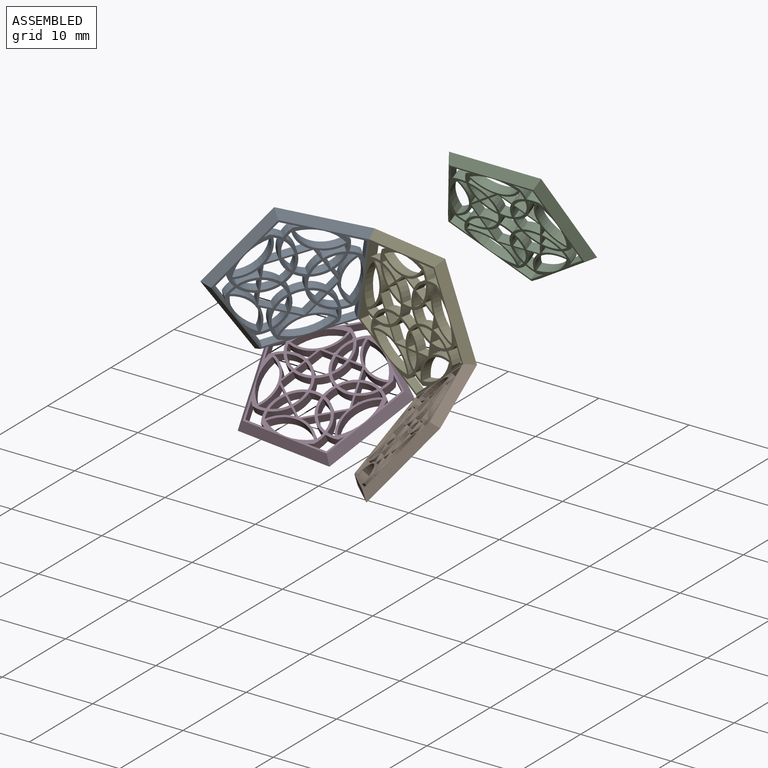
[diagram: assembled view]
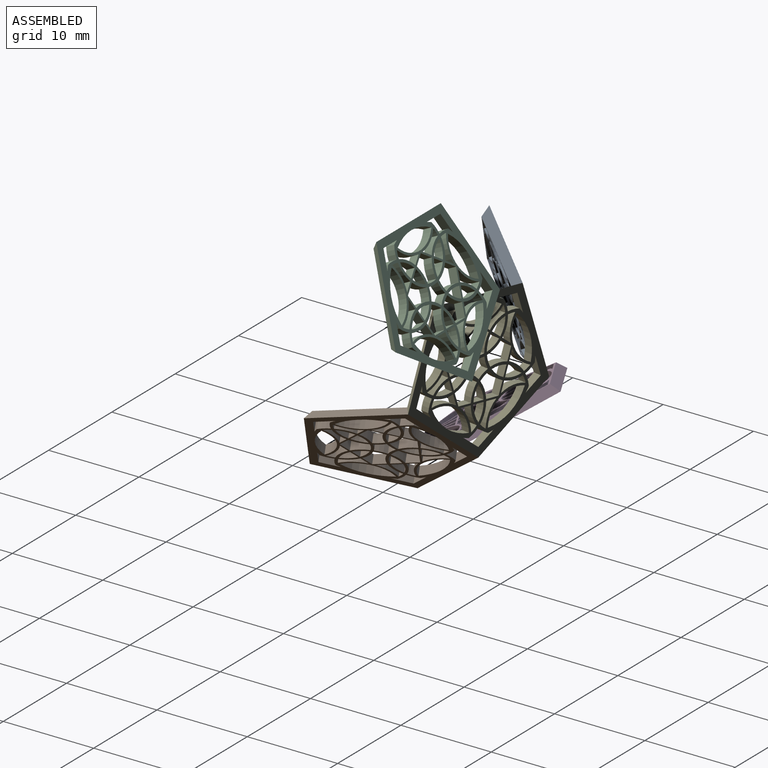
[diagram: assembled view, second angle]
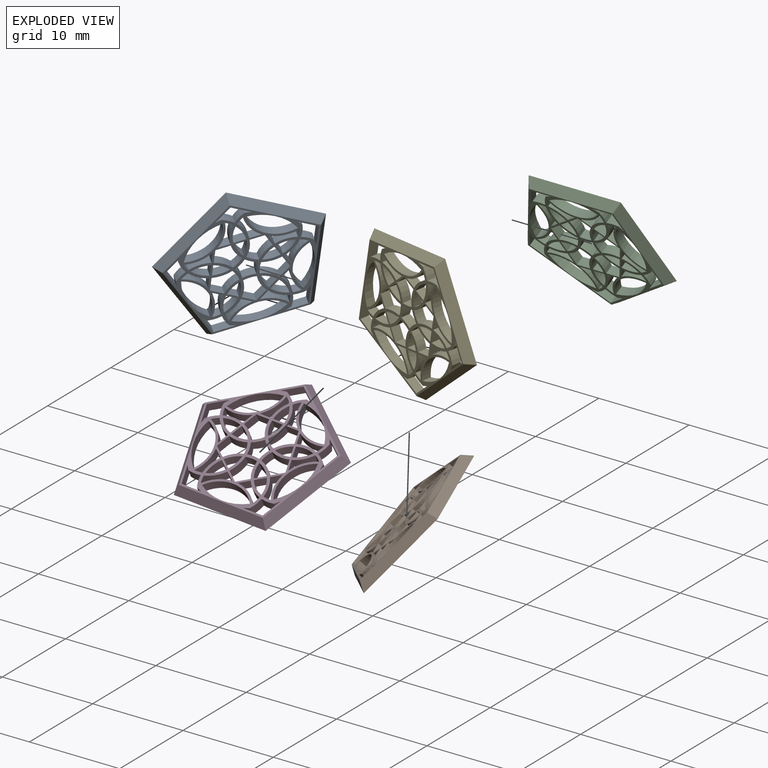
[diagram: exploded view]
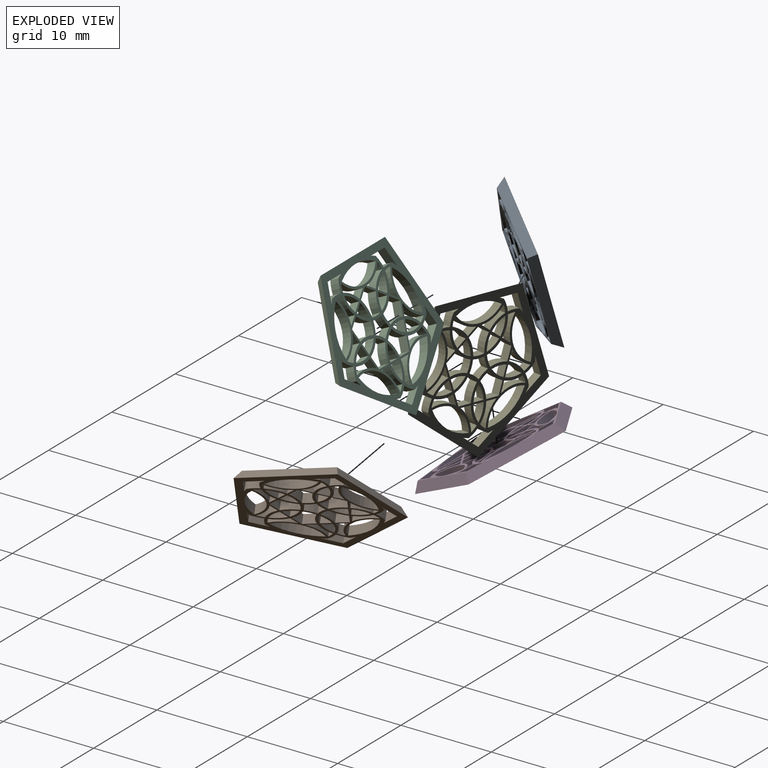
[diagram: exploded view, second angle]
ASSEMBLY  parts=5 mates=3
PART A: 147 faces, bbox 16.5x15.7x1 mm
  f0: cylinder r=7.15mm len=1mm, axis (0,0,-1), area 0.6mm2, adj f127,f130,f131,f134
  f1: cylinder r=7.15mm len=1mm, axis (0,0,-1), area 0.6mm2, adj f85,f130,f131,f132
  f2: cylinder r=7.15mm len=1mm, axis (0,0,-1), area 0.6mm2, adj f88,f130,f131,f140
  f3: cylinder r=7.15mm len=1mm, axis (0,0,-1), area 0.6mm2, adj f91,f130,f131,f138
  f4: cylinder r=7.15mm len=1mm, axis (0,0,-1), area 0.6mm2, adj f94,f130,f131,f136
  f5: cylinder r=3.1mm len=1mm, axis (0,0,-1), area 0.9mm2, adj f6,f129,f130,f131
  f6: cylinder r=3.66mm len=2.11mm, axis (0,0,-1), area 3mm2, adj f5,f7,f130,f131
  f7: plane 1.13x1mm, normal (0.95,0.31,0), area 1.2mm2, adj f6,f129,f130,f131
  f8: plane 1.38x1mm, normal (0.95,-0.31,0), area 1.5mm2, adj f9,f98,f130,f131
  f9: plane 1.45x1mm, normal (0,-1,0), area 1.5mm2, adj f8,f10,f130,f131
  f10: cylinder r=3.4mm len=1.87mm, axis (0,0,-1), area 2mm2, adj f9,f11,f130,f131
  f11: cylinder r=3.1mm len=1.04mm, axis (0,0,-1), area 1.3mm2, adj f10,f98,f130,f131
  f12: plane 1.45x1mm, normal (0,-1,0), area 1.5mm2, adj f13,f99,f130,f131
  f13: plane 1.38x1mm, normal (-0.95,-0.31,0), area 1.5mm2, adj f12,f14,f130,f131
  f14: cylinder r=3.4mm len=1.56mm, axis (0,0,-1), area 2mm2, adj f13,f15,f130,f131
  f15: cylinder r=3.1mm len=1.04mm, axis (0,0,-1), area 1.3mm2, adj f14,f99,f130,f131
  f16: plane 1.38x1mm, normal (-0.95,-0.31,0), area 1.5mm2, adj f17,f100,f130,f131
  f17: plane 1.18x1mm, normal (-0.59,0.81,0), area 1.5mm2, adj f16,f18,f130,f131
  f18: cylinder r=3.4mm len=1.67mm, axis (0,0,-1), area 2mm2, adj f17,f19,f130,f131
  f19: cylinder r=3.1mm len=1.22mm, axis (0,0,-1), area 1.3mm2, adj f18,f100,f130,f131
  f20: plane 1.18x1mm, normal (0.59,0.81,0), area 1.5mm2, adj f21,f101,f130,f131
  f21: plane 1.38x1mm, normal (0.95,-0.31,0), area 1.5mm2, adj f20,f22,f130,f131
  f22: cylinder r=3.4mm len=2mm, axis (0,0,-1), area 2mm2, adj f21,f23,f130,f131
  f23: cylinder r=3.1mm len=1.22mm, axis (0,0,-1), area 1.3mm2, adj f22,f101,f130,f131
  f24: cylinder r=3.4mm len=1.27mm, axis (0,0,-1), area 1.3mm2, adj f25,f102,f130,f131
  f25: cylinder r=3.4mm len=1.08mm, axis (0,0,-1), area 1.3mm2, adj f24,f26,f130,f131
  f26: cylinder r=3.4mm len=1.08mm, axis (0,0,-1), area 1.3mm2, adj f25,f27,f130,f131
  f27: cylinder r=3.4mm len=1.27mm, axis (0,0,-1), area 1.3mm2, adj f26,f102,f130,f131
  f28: cylinder r=3.1mm len=1.67mm, axis (0,0,-1), area 1.8mm2, adj f29,f103,f130,f131
  f29: cylinder r=3.1mm len=1.44mm, axis (0,0,-1), area 1.8mm2, adj f28,f103,f130,f131
  f30: plane 1.13x1mm, normal (-0.95,0.31,0), area 1.2mm2, adj f31,f104,f130,f131
  f31: cylinder r=3.66mm len=2.11mm, axis (0,0,-1), area 3mm2, adj f30,f32,f130,f131
  f32: cylinder r=3.1mm len=1mm, axis (0,0,-1), area 0.9mm2, adj f31,f104,f130,f131
  f33: plane 1.15x1mm, normal (-0.95,0.31,0), area 1.2mm2, adj f34,f105,f130,f131
  f34: cylinder r=3.1mm len=1.56mm, axis (0,0,-1), area 2mm2, adj f33,f105,f130,f131
  f35: cylinder r=3.1mm len=1.56mm, axis (0,0,-1), area 2mm2, adj f36,f106,f130,f131
  f36: plane 1.15x1mm, normal (0.95,0.31,0), area 1.2mm2, adj f35,f106,f130,f131
  f37: plane 1.13x1mm, normal (0.95,0.31,0), area 1.2mm2, adj f38,f107,f130,f131
  f38: cylinder r=3.66mm len=2.88mm, axis (0,0,-1), area 3mm2, adj f37,f39,f130,f131
  f39: cylinder r=3.1mm len=1mm, axis (0,0,-1), area 0.9mm2, adj f38,f107,f130,f131
  f40: cylinder r=3.1mm len=1.67mm, axis (0,0,-1), area 1.8mm2, adj f41,f108,f130,f131
  f41: plane 1x0.96mm, normal (0.59,0.81,0), area 1.2mm2, adj f40,f108,f130,f131
  f42: cylinder r=3.1mm len=1.37mm, axis (0,0,-1), area 1.8mm2, adj f43,f109,f130,f131
  f43: plane 1.13x1mm, normal (-0.95,-0.31,0), area 1.2mm2, adj f42,f109,f130,f131
  f44: cylinder r=3.1mm len=1.63mm, axis (0,0,-1), area 1.8mm2, adj f45,f110,f130,f131
  f45: plane 1.19x1mm, normal (0,-1,0), area 1.2mm2, adj f44,f110,f130,f131
  f46: cylinder r=3.1mm len=1.74mm, axis (0,0,-1), area 1.8mm2, adj f47,f111,f130,f131
  f47: plane 1.13x1mm, normal (0.95,-0.31,0), area 1.2mm2, adj f46,f111,f130,f131
  f48: cylinder r=3.1mm len=1mm, axis (0,0,-1), area 0.9mm2, adj f49,f112,f130,f131
  f49: cylinder r=3.66mm len=2.88mm, axis (0,0,-1), area 3mm2, adj f48,f50,f130,f131
  f50: plane 1.13x1mm, normal (-0.95,0.31,0), area 1.2mm2, adj f49,f112,f130,f131
  f51: cylinder r=3.1mm len=1.84mm, axis (0,0,-1), area 2mm2, adj f52,f113,f130,f131
  f52: plane 1.21x1mm, normal (0,1,0), area 1.2mm2, adj f51,f113,f130,f131
  f53: plane 1.19x1mm, normal (0,1,0), area 1.2mm2, adj f54,f114,f130,f131
  f54: cylinder r=3.66mm len=2.62mm, axis (0,0,-1), area 3mm2, adj f53,f55,f130,f131
  f55: cylinder r=3.1mm len=1mm, axis (0,0,-1), area 0.9mm2, adj f54,f114,f130,f131
  f56: plane 1.19x1mm, normal (0,1,0), area 1.2mm2, adj f57,f115,f130,f131
  f57: cylinder r=3.4mm len=2.08mm, axis (0,0,-1), area 2.2mm2, adj f56,f58,f130,f131
  f58: cylinder r=3.1mm len=1mm, axis (0,0,-1), area 0.9mm2, adj f57,f115,f130,f131
  f59: cylinder r=3.4mm len=4.31mm, axis (0,0,-1), area 6.1mm2, adj f116,f130,f131
  f60: cylinder r=3.1mm len=1.29mm, axis (0,0,-1), area 1.3mm2, adj f61,f117,f130,f131
  f61: cylinder r=3.4mm len=1.93mm, axis (0,0,-1), area 2mm2, adj f60,f62,f130,f131
  f62: plane 1.18x1mm, normal (-0.59,0.81,0), area 1.5mm2, adj f61,f63,f130,f131
  f63: plane 1.18x1mm, normal (0.59,0.81,0), area 1.5mm2, adj f62,f117,f130,f131
  f64: cylinder r=3.4mm len=5.07mm, axis (0,0,-1), area 6.1mm2, adj f118,f130,f131
  f65: cylinder r=3.4mm len=1.79mm, axis (0,0,-1), area 2.2mm2, adj f66,f119,f130,f131
  f66: cylinder r=3.1mm len=1mm, axis (0,0,-1), area 0.9mm2, adj f65,f67,f130,f131
  f67: cylinder r=3.66mm len=2.55mm, axis (0,0,-1), area 3mm2, adj f66,f119,f130,f131
  f68: cylinder r=3.1mm len=1mm, axis (0,0,-1), area 0.9mm2, adj f69,f120,f130,f131
  f69: cylinder r=3.4mm len=2.1mm, axis (0,0,-1), area 2.2mm2, adj f68,f70,f130,f131
  f70: plane 1x0.96mm, normal (0.59,-0.81,0), area 1.2mm2, adj f69,f120,f130,f131
  f71: cylinder r=3.1mm len=1.84mm, axis (0,0,-1), area 2mm2, adj f72,f121,f130,f131
  f72: cylinder r=3.1mm len=1.57mm, axis (0,0,-1), area 2mm2, adj f71,f121,f130,f131
  f73: cylinder r=3.4mm len=5.33mm, axis (0,0,-1), area 6.1mm2, adj f122,f130,f131
  f74: cylinder r=3.4mm len=2.1mm, axis (0,0,-1), area 2.2mm2, adj f75,f123,f130,f131
  f75: cylinder r=3.1mm len=1mm, axis (0,0,-1), area 0.9mm2, adj f74,f76,f130,f131
  f76: cylinder r=3.66mm len=2.86mm, axis (0,0,-1), area 3mm2, adj f75,f123,f130,f131
  f77: cylinder r=3.1mm len=1mm, axis (0,0,-1), area 0.9mm2, adj f78,f124,f130,f131
  f78: cylinder r=3.4mm len=1.79mm, axis (0,0,-1), area 2.2mm2, adj f77,f79,f130,f131
  f79: plane 1x0.96mm, normal (-0.59,-0.81,0), area 1.2mm2, adj f78,f124,f130,f131
  f80: cylinder r=3.1mm len=1.57mm, axis (0,0,-1), area 2mm2, adj f81,f125,f130,f131
  f81: cylinder r=3.1mm len=1.84mm, axis (0,0,-1), area 2mm2, adj f80,f125,f130,f131
  f82: cylinder r=3.4mm len=5.07mm, axis (0,0,-1), area 6.1mm2, adj f126,f130,f131
  f83: cylinder r=7.15mm len=1mm, axis (0,0,-1), area 0.6mm2, adj f84,f130,f131,f133
  f84: cylinder r=3.4mm len=1.37mm, axis (0,0,-1), area 1.4mm2, adj f83,f85,f130,f131
  f85: cylinder r=3.4mm len=1.3mm, axis (0,0,-1), area 1.4mm2, adj f1,f84,f130,f131
  f86: cylinder r=7.15mm len=1mm, axis (0,0,-1), area 0.6mm2, adj f87,f130,f131,f141
  f87: cylinder r=3.4mm len=1.3mm, axis (0,0,-1), area 1.4mm2, adj f86,f88,f130,f131
  f88: cylinder r=3.4mm len=1.37mm, axis (0,0,-1), area 1.4mm2, adj f2,f87,f130,f131
  f89: cylinder r=7.15mm len=1mm, axis (0,0,-1), area 0.6mm2, adj f90,f130,f131,f139
  f90: cylinder r=3.4mm len=1.11mm, axis (0,0,-1), area 1.4mm2, adj f89,f91,f130,f131
  f91: cylinder r=3.4mm len=1.31mm, axis (0,0,-1), area 1.4mm2, adj f3,f90,f130,f131
  f92: cylinder r=7.15mm len=1mm, axis (0,0,-1), area 0.6mm2, adj f93,f130,f131,f137
  f93: cylinder r=3.4mm len=1.12mm, axis (0,0,-1), area 1.4mm2, adj f92,f94,f130,f131
  f94: cylinder r=3.4mm len=1.12mm, axis (0,0,-1), area 1.4mm2, adj f4,f93,f130,f131
  f95: cylinder r=7.15mm len=1mm, axis (0,0,-1), area 0.6mm2, adj f96,f130,f131,f135
  f96: cylinder r=3.4mm len=1.31mm, axis (0,0,-1), area 1.4mm2, adj f95,f127,f130,f131
  f97: cylinder r=5.13mm len=4.31mm, axis (0,0,-1), area 5.6mm2, adj f128,f130,f131
  f98: cylinder r=3.4mm len=1.56mm, axis (0,0,-1), area 2mm2, adj f8,f11,f130,f131
  f99: cylinder r=3.4mm len=1.87mm, axis (0,0,-1), area 2mm2, adj f12,f15,f130,f131
  f100: cylinder r=3.4mm len=2mm, axis (0,0,-1), area 2mm2, adj f16,f19,f130,f131
  f101: cylinder r=3.4mm len=1.67mm, axis (0,0,-1), area 2mm2, adj f20,f23,f130,f131
  f102: cylinder r=3.4mm len=1.33mm, axis (0,0,-1), area 1.3mm2, adj f24,f27,f130,f131
  f103: plane 1x0.96mm, normal (-0.59,0.81,0), area 1.2mm2, adj f28,f29,f130,f131
  f104: cylinder r=3.4mm len=1.76mm, axis (0,0,-1), area 2.2mm2, adj f30,f32,f130,f131
  f105: cylinder r=3.1mm len=1.93mm, axis (0,0,-1), area 2mm2, adj f33,f34,f130,f131
  f106: cylinder r=3.1mm len=1.93mm, axis (0,0,-1), area 2mm2, adj f35,f36,f130,f131
  f107: cylinder r=3.4mm len=2.19mm, axis (0,0,-1), area 2.2mm2, adj f37,f39,f130,f131
  f108: cylinder r=3.1mm len=1.44mm, axis (0,0,-1), area 1.8mm2, adj f40,f41,f130,f131
  f109: cylinder r=3.1mm len=1.74mm, axis (0,0,-1), area 1.8mm2, adj f42,f43,f130,f131
  f110: cylinder r=3.1mm len=1.63mm, axis (0,0,-1), area 1.8mm2, adj f44,f45,f130,f131
  f111: cylinder r=3.1mm len=1.37mm, axis (0,0,-1), area 1.8mm2, adj f46,f47,f130,f131
  f112: cylinder r=3.4mm len=2.19mm, axis (0,0,-1), area 2.2mm2, adj f48,f50,f130,f131
  f113: cylinder r=3.1mm len=1.84mm, axis (0,0,-1), area 2mm2, adj f51,f52,f130,f131
  f114: cylinder r=3.4mm len=2.08mm, axis (0,0,-1), area 2.2mm2, adj f53,f55,f130,f131
  f115: cylinder r=3.66mm len=2.62mm, axis (0,0,-1), area 3mm2, adj f56,f58,f130,f131
  f116: cylinder r=5.13mm len=4.31mm, axis (0,0,-1), area 5.6mm2, adj f59,f130,f131
  f117: cylinder r=3.4mm len=1.93mm, axis (0,0,-1), area 2mm2, adj f60,f63,f130,f131
  f118: cylinder r=5.13mm len=5.07mm, axis (0,0,-1), area 5.6mm2, adj f64,f130,f131
  f119: plane 1x0.96mm, normal (0.59,-0.81,0), area 1.2mm2, adj f65,f67,f130,f131
  f120: cylinder r=3.66mm len=2.86mm, axis (0,0,-1), area 3mm2, adj f68,f70,f130,f131
  f121: plane 1x0.98mm, normal (0.59,-0.81,0), area 1.2mm2, adj f71,f72,f130,f131
  f122: cylinder r=5.13mm len=5.33mm, axis (0,0,-1), area 5.6mm2, adj f73,f130,f131
  f123: plane 1x0.96mm, normal (-0.59,-0.81,0), area 1.2mm2, adj f74,f76,f130,f131
  f124: cylinder r=3.66mm len=2.55mm, axis (0,0,-1), area 3mm2, adj f77,f79,f130,f131
  f125: plane 1x0.98mm, normal (-0.59,-0.81,0), area 1.2mm2, adj f80,f81,f130,f131
  f126: cylinder r=5.13mm len=5.07mm, axis (0,0,-1), area 5.6mm2, adj f82,f130,f131
  f127: cylinder r=3.4mm len=1.11mm, axis (0,0,-1), area 1.4mm2, adj f0,f96,f130,f131
  f128: cylinder r=3.4mm len=4.31mm, axis (0,0,-1), area 6.1mm2, adj f97,f130,f131
  f129: cylinder r=3.4mm len=1.76mm, axis (0,0,-1), area 2.2mm2, adj f5,f7,f130,f131
  f130: plane 15.05x14.32mm, normal (0,0,1), area 45.6mm2, adj f0,f1,f2,f3,f4,f5,f6,f7
  f131: plane 16.5x15.7mm, normal (0,0,-1), area 75.7mm2, adj f0,f1,f2,f3,f4,f5,f6,f7
  f132: plane 2.15x1mm, normal (0,1,0), area 2.2mm2, adj f1,f130,f131,f133
  f133: plane 2.05x1mm, normal (0.95,0.31,0), area 2.2mm2, adj f83,f130,f131,f132
  f134: plane 2.05x1mm, normal (0.95,0.31,0), area 2.2mm2, adj f0,f130,f131,f135
  f135: plane 1.74x1.27mm, normal (0.59,-0.81,0), area 2.2mm2, adj f95,f130,f131,f134
  f136: plane 1.74x1.27mm, normal (0.59,-0.81,0), area 2.2mm2, adj f4,f130,f131,f137
  f137: plane 1.74x1.27mm, normal (-0.59,-0.81,0), area 2.2mm2, adj f92,f130,f131,f136
  f138: plane 1.74x1.27mm, normal (-0.59,-0.81,0), area 2.2mm2, adj f3,f130,f131,f139
  f139: plane 2.05x1mm, normal (-0.95,0.31,0), area 2.2mm2, adj f89,f130,f131,f138
  f140: plane 2.05x1mm, normal (-0.95,0.31,0), area 2.2mm2, adj f2,f130,f131,f141
  f141: plane 2.15x1mm, normal (0,1,0), area 2.2mm2, adj f86,f130,f131,f140
  f142: plane 9.7x3.6mm, normal (-0.81,-0.26,0.53), area 11.5mm2, adj f130,f131,f143,f144
  f143: plane 10.2x1mm, normal (0,-0.85,0.53), area 11.5mm2, adj f130,f131,f142,f145
  f144: plane 8.25x6.23mm, normal (-0.5,0.69,0.53), area 11.5mm2, adj f130,f131,f142,f146
  f145: plane 9.7x3.6mm, normal (0.81,-0.26,0.53), area 11.5mm2, adj f130,f131,f143,f146
  f146: plane 8.25x6.23mm, normal (0.5,0.69,0.53), area 11.5mm2, adj f130,f131,f144,f145
PART B: same geometry as A
PART C: same geometry as A
PART D: same geometry as A
PART E: same geometry as A
PLACE A rot(axis=(0.89,0.26,0.37),117.2deg) t=(-54.8,-1.43,0.44)mm
PLACE B rot(axis=(0.47,-0.06,-0.88),121.7deg) t=(-38.9,-5.15,-9.9)mm
PLACE C rot(axis=(0,0.85,-0.53),180deg) t=(-34.13,4.1,9.87)mm
PLACE D rot(axis=(0.99,0.16,-0.04),30.4deg) t=(-51.28,-1.47,-10.13)mm
PLACE E rot(axis=(0.92,0.14,-0.36),103deg) t=(-43.58,2.1,-1.65)mm
MATE fastened B.f142 <-> E.f145  axis (-0.39,0.61,0.69) through (-39.5,0.82,-6.85)mm
MATE fastened D.f146 <-> E.f143  axis (0.57,0.33,0.75) through (-47.07,2.98,-7.34)mm
MATE fastened A.f145 <-> E.f142  axis (0.94,0.3,-0.18) through (-50,3.28,-0.01)mm
